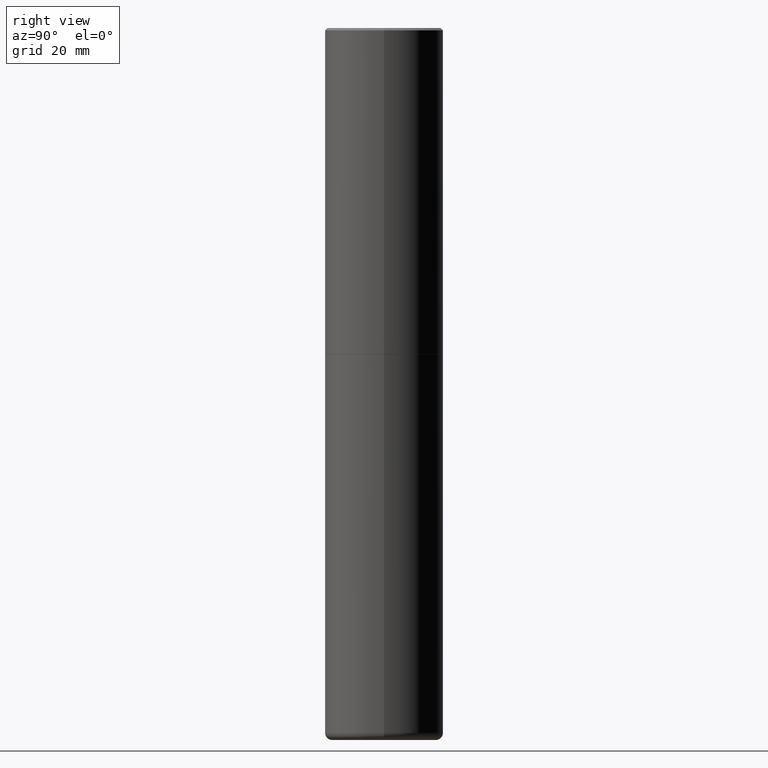
[diagram: clean part render]
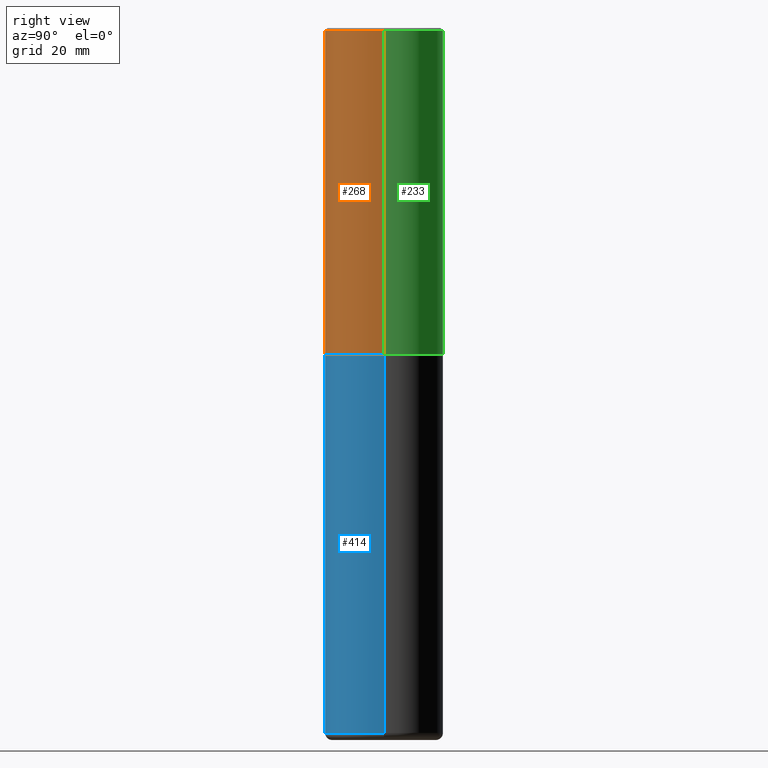
[diagram: same view with three faces highlighted in distinct colors, each labeled with its STEP entity id]
A machine part, right view with three faces highlighted in distinct colors.
Their STEP definitions:

[orange] entity #268 — the highlighted cylindrical surface (partial cylindrical patch) has radius 12.7 mm, axis along (-0, 0, 1).
#12 = EDGE_LOOP ( 'NONE', ( #152, #123, #419, #427 ) ) ;
#15 = CARTESIAN_POINT ( 'NONE',  ( 0.4999999999999990563, -3.500078625662622374E-15, -0.02000000000000018777 ) ) ;
#41 = CYLINDRICAL_SURFACE ( 'NONE', #230, 0.4999999999999995004 ) ;
#46 = AXIS2_PLACEMENT_3D ( 'NONE', #445, #397, #450 ) ;
#87 = DIRECTION ( 'NONE',  ( -2.445468806185136597E-29, 3.491481338843145583E-15, 1.000000000000000000 ) ) ;
#98 = DIRECTION ( 'NONE',  ( -2.445468806185136877E-29, 3.491481338843145188E-15, 1.000000000000000000 ) ) ;
#110 = VERTEX_POINT ( 'NONE', #319 ) ;
#114 = AXIS2_PLACEMENT_3D ( 'NONE', #360, #87, #434 ) ;
#120 = DIRECTION ( 'NONE',  ( -2.445468806185136597E-29, 3.491481338843145583E-15, 1.000000000000000000 ) ) ;
#122 = LINE ( 'NONE', #470, #333 ) ;
#123 = ORIENTED_EDGE ( 'NONE', *, *, #184, .T. ) ;
#135 = EDGE_CURVE ( 'NONE', #223, #110, #388, .T. ) ;
#144 = CIRCLE ( 'NONE', #114, 0.4999999999999990563 ) ;
#152 = ORIENTED_EDGE ( 'NONE', *, *, #135, .F. ) ;
#156 = CARTESIAN_POINT ( 'NONE',  ( 0.000000000000000000, 0.000000000000000000, 0.000000000000000000 ) ) ;
#175 = CARTESIAN_POINT ( 'NONE',  ( 0.5000000000000000000, -1.308956353932294336E-14, -2.749000000000000554 ) ) ;
#184 = EDGE_CURVE ( 'NONE', #223, #195, #392, .T. ) ;
#195 = VERTEX_POINT ( 'NONE', #175 ) ;
#198 = CARTESIAN_POINT ( 'NONE',  ( -0.4999999999999995004, 3.552713678800497379E-15, -2.459467545127450649E-29 ) ) ;
#223 = VERTEX_POINT ( 'NONE', #404 ) ;
#224 = DIRECTION ( 'NONE',  ( -2.445468806185136877E-29, 3.491481338843145188E-15, 1.000000000000000000 ) ) ;
#230 = AXIS2_PLACEMENT_3D ( 'NONE', #156, #120, #458 ) ;
#268 = ADVANCED_FACE ( 'NONE', ( #474 ), #41, .T. ) ;
#319 = CARTESIAN_POINT ( 'NONE',  ( -0.4999999999999990563, 3.421651712066263352E-15, -0.02000000000000018777 ) ) ;
#326 = VECTOR ( 'NONE', #98, 39.37007874015748143 ) ;
#333 = VECTOR ( 'NONE', #224, 39.37007874015748143 ) ;
#360 = CARTESIAN_POINT ( 'NONE',  ( 4.890937612370318701E-31, -6.982962677686356937E-17, -0.02000000000000018777 ) ) ;
#363 = EDGE_CURVE ( 'NONE', #195, #420, #122, .T. ) ;
#388 = LINE ( 'NONE', #198, #326 ) ;
#392 = CIRCLE ( 'NONE', #46, 0.5000000000000000000 ) ;
#397 = DIRECTION ( 'NONE',  ( -2.445468806185136597E-29, 3.491481338843145583E-15, 1.000000000000000000 ) ) ;
#404 = CARTESIAN_POINT ( 'NONE',  ( -0.5000000000000000000, -1.281242234827831779E-15, -2.749000000000000554 ) ) ;
#419 = ORIENTED_EDGE ( 'NONE', *, *, #363, .T. ) ;
#420 = VERTEX_POINT ( 'NONE', #15 ) ;
#427 = ORIENTED_EDGE ( 'NONE', *, *, #449, .F. ) ;
#434 = DIRECTION ( 'NONE',  ( 1.000000000000000000, -6.982962677686266711E-15, 0.000000000000000000 ) ) ;
#445 = CARTESIAN_POINT ( 'NONE',  ( 6.722593748202942280E-29, -9.598082200479810007E-15, -2.749000000000000554 ) ) ;
#449 = EDGE_CURVE ( 'NONE', #110, #420, #144, .T. ) ;
#450 = DIRECTION ( 'NONE',  ( 1.000000000000000000, -6.982962677686266711E-15, 0.000000000000000000 ) ) ;
#458 = DIRECTION ( 'NONE',  ( 1.000000000000000000, -6.982962677686267499E-15, 4.876176775795935793E-29 ) ) ;
#470 = CARTESIAN_POINT ( 'NONE',  ( 0.4999999999999995004, -3.491481338843130200E-15, 2.438088387897965374E-29 ) ) ;
#474 = FACE_OUTER_BOUND ( 'NONE', #12, .T. ) ;

[blue] entity #414 — the highlighted cylindrical surface (partial cylindrical patch) has radius 12.7 mm, axis along (-0, 0, 1).
#9 = VERTEX_POINT ( 'NONE', #279 ) ;
#22 = EDGE_CURVE ( 'NONE', #72, #47, #160, .T. ) ;
#39 = EDGE_LOOP ( 'NONE', ( #182, #336, #186, #121 ) ) ;
#47 = VERTEX_POINT ( 'NONE', #171 ) ;
#59 = DIRECTION ( 'NONE',  ( 1.000000000000000000, -6.982962677686270655E-15, 0.000000000000000000 ) ) ;
#72 = VERTEX_POINT ( 'NONE', #126 ) ;
#76 = CARTESIAN_POINT ( 'NONE',  ( 0.5000000000000000000, -3.491481338843133355E-15, 2.438088387897967896E-29 ) ) ;
#101 = EDGE_CURVE ( 'NONE', #47, #354, #411, .T. ) ;
#104 = AXIS2_PLACEMENT_3D ( 'NONE', #207, #395, #59 ) ;
#121 = ORIENTED_EDGE ( 'NONE', *, *, #101, .F. ) ;
#126 = CARTESIAN_POINT ( 'NONE',  ( -0.5000000000000000000, -1.161777672682029399E-14, -5.940002284616149097 ) ) ;
#140 = VECTOR ( 'NONE', #196, 39.37007874015748143 ) ;
#159 = DIRECTION ( 'NONE',  ( 1.000000000000000000, -6.982962677686266711E-15, 4.876176775795935793E-29 ) ) ;
#160 = LINE ( 'NONE', #365, #301 ) ;
#166 = EDGE_CURVE ( 'NONE', #72, #9, #367, .T. ) ;
#168 = CARTESIAN_POINT ( 'NONE',  ( 6.725039217009125641E-29, -9.601573681818653015E-15, -2.750000000000000444 ) ) ;
#171 = CARTESIAN_POINT ( 'NONE',  ( -0.5000000000000000000, -1.161777672682029399E-14, -2.750000000000000444 ) ) ;
#178 = DIRECTION ( 'NONE',  ( -2.445468806185136597E-29, 3.491481338843145583E-15, 1.000000000000000000 ) ) ;
#182 = ORIENTED_EDGE ( 'NONE', *, *, #22, .F. ) ;
#186 = ORIENTED_EDGE ( 'NONE', *, *, #348, .T. ) ;
#196 = DIRECTION ( 'NONE',  ( -2.445468806185136877E-29, 3.491481338843145188E-15, 1.000000000000000000 ) ) ;
#203 = AXIS2_PLACEMENT_3D ( 'NONE', #168, #276, #394 ) ;
#207 = CARTESIAN_POINT ( 'NONE',  ( 1.452609029569723979E-28, -2.073940712942293841E-14, -5.940002284616149097 ) ) ;
#276 = DIRECTION ( 'NONE',  ( -2.445468806185136597E-29, 3.491481338843145583E-15, 1.000000000000000000 ) ) ;
#279 = CARTESIAN_POINT ( 'NONE',  ( 0.5000000000000000000, -2.423088846826607176E-14, -5.940002284616149097 ) ) ;
#288 = CYLINDRICAL_SURFACE ( 'NONE', #327, 0.5000000000000000000 ) ;
#301 = VECTOR ( 'NONE', #393, 39.37007874015748143 ) ;
#310 = CARTESIAN_POINT ( 'NONE',  ( 0.5000000000000000000, -1.309305502066178637E-14, -2.750000000000000444 ) ) ;
#327 = AXIS2_PLACEMENT_3D ( 'NONE', #369, #178, #159 ) ;
#336 = ORIENTED_EDGE ( 'NONE', *, *, #166, .T. ) ;
#340 = LINE ( 'NONE', #76, #140 ) ;
#348 = EDGE_CURVE ( 'NONE', #9, #354, #340, .T. ) ;
#354 = VERTEX_POINT ( 'NONE', #310 ) ;
#365 = CARTESIAN_POINT ( 'NONE',  ( -0.5000000000000000000, 3.552713678800500929E-15, -2.459467545127452891E-29 ) ) ;
#367 = CIRCLE ( 'NONE', #104, 0.5000000000000000000 ) ;
#369 = CARTESIAN_POINT ( 'NONE',  ( 0.000000000000000000, 0.000000000000000000, 0.000000000000000000 ) ) ;
#393 = DIRECTION ( 'NONE',  ( -2.445468806185136877E-29, 3.491481338843145188E-15, 1.000000000000000000 ) ) ;
#394 = DIRECTION ( 'NONE',  ( 1.000000000000000000, -6.982962677686266711E-15, 0.000000000000000000 ) ) ;
#395 = DIRECTION ( 'NONE',  ( -2.445468806185136597E-29, 3.491481338843145583E-15, 1.000000000000000000 ) ) ;
#411 = CIRCLE ( 'NONE', #203, 0.5000000000000000000 ) ;
#414 = ADVANCED_FACE ( 'NONE', ( #486 ), #288, .T. ) ;
#486 = FACE_OUTER_BOUND ( 'NONE', #39, .T. ) ;

[green] entity #233 — the highlighted cylindrical surface (partial cylindrical patch) has radius 12.7 mm, axis along (-0, 0, 1).
#15 = CARTESIAN_POINT ( 'NONE',  ( 0.4999999999999990563, -3.500078625662622374E-15, -0.02000000000000018777 ) ) ;
#26 = AXIS2_PLACEMENT_3D ( 'NONE', #480, #285, #212 ) ;
#51 = DIRECTION ( 'NONE',  ( -2.445468806185136597E-29, 3.491481338843145583E-15, 1.000000000000000000 ) ) ;
#78 = EDGE_CURVE ( 'NONE', #420, #110, #130, .T. ) ;
#81 = ORIENTED_EDGE ( 'NONE', *, *, #363, .F. ) ;
#88 = DIRECTION ( 'NONE',  ( 1.000000000000000000, -6.982962677686266711E-15, 0.000000000000000000 ) ) ;
#94 = EDGE_LOOP ( 'NONE', ( #219, #146, #309, #81 ) ) ;
#98 = DIRECTION ( 'NONE',  ( -2.445468806185136877E-29, 3.491481338843145188E-15, 1.000000000000000000 ) ) ;
#110 = VERTEX_POINT ( 'NONE', #319 ) ;
#122 = LINE ( 'NONE', #470, #333 ) ;
#130 = CIRCLE ( 'NONE', #373, 0.4999999999999990563 ) ;
#135 = EDGE_CURVE ( 'NONE', #223, #110, #388, .T. ) ;
#146 = ORIENTED_EDGE ( 'NONE', *, *, #135, .T. ) ;
#175 = CARTESIAN_POINT ( 'NONE',  ( 0.5000000000000000000, -1.308956353932294336E-14, -2.749000000000000554 ) ) ;
#183 = DIRECTION ( 'NONE',  ( -2.445468806185136597E-29, 3.491481338843145583E-15, 1.000000000000000000 ) ) ;
#195 = VERTEX_POINT ( 'NONE', #175 ) ;
#198 = CARTESIAN_POINT ( 'NONE',  ( -0.4999999999999995004, 3.552713678800497379E-15, -2.459467545127450649E-29 ) ) ;
#212 = DIRECTION ( 'NONE',  ( 1.000000000000000000, -6.982962677686267499E-15, 4.876176775795935793E-29 ) ) ;
#216 = FACE_OUTER_BOUND ( 'NONE', #94, .T. ) ;
#219 = ORIENTED_EDGE ( 'NONE', *, *, #328, .T. ) ;
#223 = VERTEX_POINT ( 'NONE', #404 ) ;
#224 = DIRECTION ( 'NONE',  ( -2.445468806185136877E-29, 3.491481338843145188E-15, 1.000000000000000000 ) ) ;
#227 = CARTESIAN_POINT ( 'NONE',  ( 6.722593748202942280E-29, -9.598082200479810007E-15, -2.749000000000000554 ) ) ;
#233 = ADVANCED_FACE ( 'NONE', ( #216 ), #329, .T. ) ;
#285 = DIRECTION ( 'NONE',  ( -2.445468806185136597E-29, 3.491481338843145583E-15, 1.000000000000000000 ) ) ;
#309 = ORIENTED_EDGE ( 'NONE', *, *, #78, .F. ) ;
#319 = CARTESIAN_POINT ( 'NONE',  ( -0.4999999999999990563, 3.421651712066263352E-15, -0.02000000000000018777 ) ) ;
#326 = VECTOR ( 'NONE', #98, 39.37007874015748143 ) ;
#328 = EDGE_CURVE ( 'NONE', #195, #223, #478, .T. ) ;
#329 = CYLINDRICAL_SURFACE ( 'NONE', #26, 0.4999999999999995004 ) ;
#333 = VECTOR ( 'NONE', #224, 39.37007874015748143 ) ;
#352 = DIRECTION ( 'NONE',  ( 1.000000000000000000, -6.982962677686266711E-15, 0.000000000000000000 ) ) ;
#362 = CARTESIAN_POINT ( 'NONE',  ( 4.890937612370318701E-31, -6.982962677686356937E-17, -0.02000000000000018777 ) ) ;
#363 = EDGE_CURVE ( 'NONE', #195, #420, #122, .T. ) ;
#373 = AXIS2_PLACEMENT_3D ( 'NONE', #362, #51, #88 ) ;
#388 = LINE ( 'NONE', #198, #326 ) ;
#404 = CARTESIAN_POINT ( 'NONE',  ( -0.5000000000000000000, -1.281242234827831779E-15, -2.749000000000000554 ) ) ;
#420 = VERTEX_POINT ( 'NONE', #15 ) ;
#444 = AXIS2_PLACEMENT_3D ( 'NONE', #227, #183, #352 ) ;
#470 = CARTESIAN_POINT ( 'NONE',  ( 0.4999999999999995004, -3.491481338843130200E-15, 2.438088387897965374E-29 ) ) ;
#478 = CIRCLE ( 'NONE', #444, 0.5000000000000000000 ) ;
#480 = CARTESIAN_POINT ( 'NONE',  ( 0.000000000000000000, 0.000000000000000000, 0.000000000000000000 ) ) ;